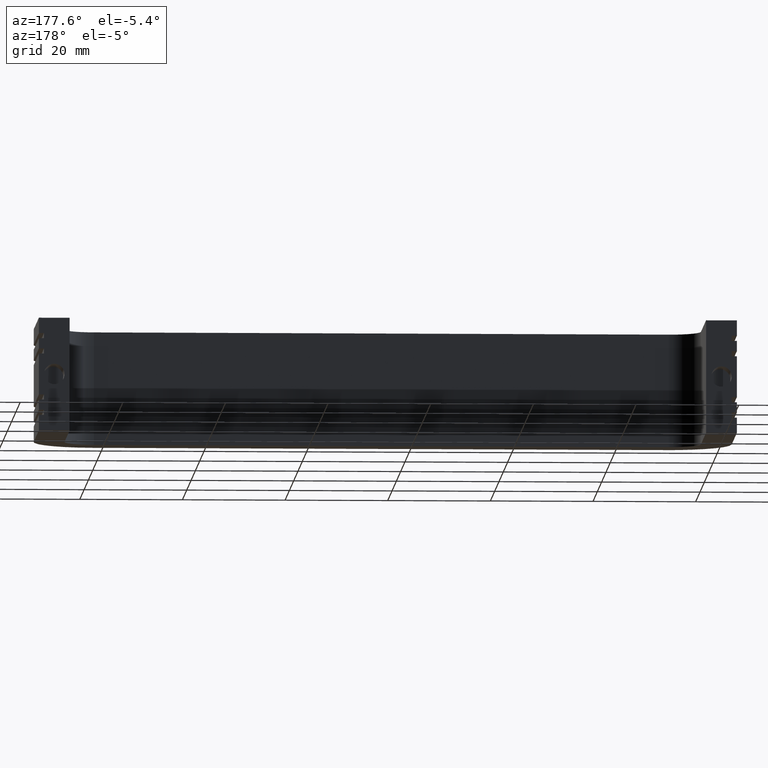
[diagram: clean part render]
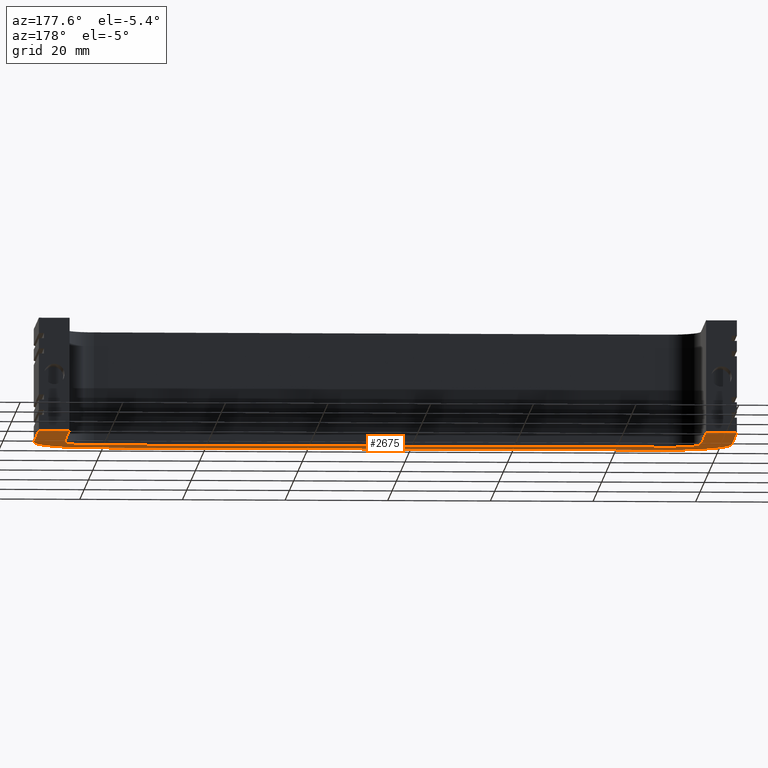
[diagram: same view with one face highlighted and labeled with its STEP entity id]
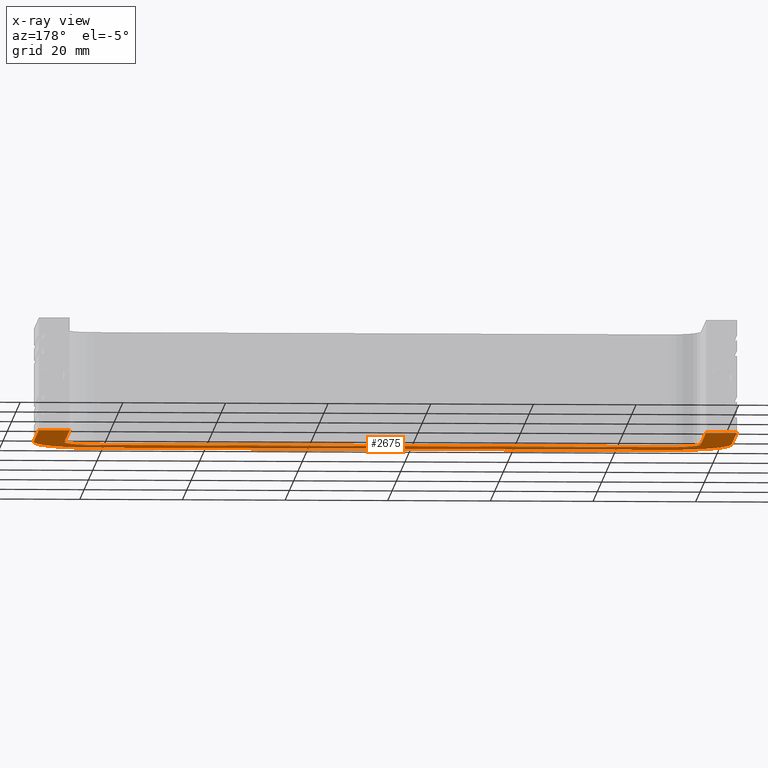
[diagram: x-ray of the same camera — body ghosted, the highlighted face saturated]
A machine part, auxiliary view. The second image highlights one B-rep face of the part: STEP entity #2675.
The next image is the same camera in x-ray: the body ghosted, the highlighted face saturated — about 0% of this face is hidden behind the body in this view.
In plain terms, the highlighted face is a freeform B-spline surface patch.
Its self-contained STEP definition (entity closure, byte-faithful):
#734=CARTESIAN_POINT('',(132.999900000000000,-24.0,-11.0));
#735=VERTEX_POINT('',#734);
#741=CARTESIAN_POINT('',(132.999900000000000,0.0,-11.0));
#742=VERTEX_POINT('',#741);
#743=CARTESIAN_POINT('',(132.999900000000000,-24.0,-11.0));
#744=CARTESIAN_POINT('',(132.999900000000000,0.0,-11.0));
#745=QUASI_UNIFORM_CURVE('',1,(#743,#744),.UNSPECIFIED.,.F.,.U.);
#746=EDGE_CURVE('',#735,#742,#745,.T.);
#761=CARTESIAN_POINT('',(126.999900000000000,-24.0,-11.0));
#762=VERTEX_POINT('',#761);
#763=CARTESIAN_POINT('',(126.999900000000000,0.0,-11.0));
#764=VERTEX_POINT('',#763);
#765=CARTESIAN_POINT('',(126.999900000000000,-24.0,-11.0));
#766=CARTESIAN_POINT('',(126.999900000000000,0.0,-11.0));
#767=QUASI_UNIFORM_CURVE('',1,(#765,#766),.UNSPECIFIED.,.F.,.U.);
#768=EDGE_CURVE('',#762,#764,#767,.T.);
#1245=CARTESIAN_POINT('',(120.999900000000000,-36.0,-11.0));
#1246=VERTEX_POINT('',#1245);
#1252=CARTESIAN_POINT('',(120.999900000000000,-36.000000000000007,-11.0));
#1253=CARTESIAN_POINT('',(132.999900000000000,-36.000000000000014,-11.0));
#1254=CARTESIAN_POINT('',(132.999900000000000,-24.0,-11.0));
#1262=(BOUNDED_CURVE()B_SPLINE_CURVE(2,(#1252,#1253,#1254),.UNSPECIFIED.,.F.,.U.)CURVE()GEOMETRIC_REPRESENTATION_ITEM()QUASI_UNIFORM_CURVE()RATIONAL_B_SPLINE_CURVE((1.0,0.707106781186548,1.0))REPRESENTATION_ITEM(''));
#1263=EDGE_CURVE('',#1246,#735,#1262,.T.);
#1283=CARTESIAN_POINT('',(120.999900000000000,-30.0,-11.0));
#1284=VERTEX_POINT('',#1283);
#1285=CARTESIAN_POINT('',(120.999900000000000,-30.0,-11.0));
#1286=CARTESIAN_POINT('',(126.999900000000000,-30.000000000000004,-11.0));
#1287=CARTESIAN_POINT('',(126.999900000000000,-24.0,-11.0));
#1295=(BOUNDED_CURVE()B_SPLINE_CURVE(2,(#1285,#1286,#1287),.UNSPECIFIED.,.F.,.U.)CURVE()GEOMETRIC_REPRESENTATION_ITEM()QUASI_UNIFORM_CURVE()RATIONAL_B_SPLINE_CURVE((1.0,0.707106781186548,1.0))REPRESENTATION_ITEM(''));
#1296=EDGE_CURVE('',#1284,#762,#1295,.T.);
#1558=CARTESIAN_POINT('',(9.0,-36.0,-11.0));
#1559=VERTEX_POINT('',#1558);
#1565=CARTESIAN_POINT('',(9.0,-36.0,-11.0));
#1566=CARTESIAN_POINT('',(120.999900000000000,-36.0,-11.0));
#1567=QUASI_UNIFORM_CURVE('',1,(#1565,#1566),.UNSPECIFIED.,.F.,.U.);
#1568=EDGE_CURVE('',#1559,#1246,#1567,.T.);
#1579=CARTESIAN_POINT('',(9.0,-30.0,-11.0));
#1580=VERTEX_POINT('',#1579);
#1581=CARTESIAN_POINT('',(9.0,-30.0,-11.0));
#1582=CARTESIAN_POINT('',(120.999900000000000,-30.0,-11.0));
#1583=QUASI_UNIFORM_CURVE('',1,(#1581,#1582),.UNSPECIFIED.,.F.,.U.);
#1584=EDGE_CURVE('',#1580,#1284,#1583,.T.);
#2055=CARTESIAN_POINT('',(-3.0,-24.0,-11.0));
#2056=VERTEX_POINT('',#2055);
#2062=CARTESIAN_POINT('',(-3.000000000000001,-24.0,-11.0));
#2063=CARTESIAN_POINT('',(-3.0,-36.000000000000014,-11.0));
#2064=CARTESIAN_POINT('',(9.0,-36.000000000000007,-11.0));
#2072=(BOUNDED_CURVE()B_SPLINE_CURVE(2,(#2062,#2063,#2064),.UNSPECIFIED.,.F.,.U.)CURVE()GEOMETRIC_REPRESENTATION_ITEM()QUASI_UNIFORM_CURVE()RATIONAL_B_SPLINE_CURVE((1.0,0.707106781186548,1.0))REPRESENTATION_ITEM(''));
#2073=EDGE_CURVE('',#2056,#1559,#2072,.T.);
#2093=CARTESIAN_POINT('',(3.0,-24.0,-11.0));
#2094=VERTEX_POINT('',#2093);
#2095=CARTESIAN_POINT('',(2.999999999999999,-24.0,-11.0));
#2096=CARTESIAN_POINT('',(2.999999999999999,-30.000000000000004,-11.0));
#2097=CARTESIAN_POINT('',(9.0,-30.0,-11.0));
#2105=(BOUNDED_CURVE()B_SPLINE_CURVE(2,(#2095,#2096,#2097),.UNSPECIFIED.,.F.,.U.)CURVE()GEOMETRIC_REPRESENTATION_ITEM()QUASI_UNIFORM_CURVE()RATIONAL_B_SPLINE_CURVE((1.0,0.707106781186548,1.0))REPRESENTATION_ITEM(''));
#2106=EDGE_CURVE('',#2094,#1580,#2105,.T.);
#2626=CARTESIAN_POINT('',(-3.0,0.0,-11.0));
#2627=VERTEX_POINT('',#2626);
#2633=CARTESIAN_POINT('',(-3.0,0.0,-11.0));
#2634=CARTESIAN_POINT('',(-3.0,-24.0,-11.0));
#2635=QUASI_UNIFORM_CURVE('',1,(#2633,#2634),.UNSPECIFIED.,.F.,.U.);
#2636=EDGE_CURVE('',#2627,#2056,#2635,.T.);
#2642=CARTESIAN_POINT('',(-9.793194255518628,-37.798199930225017,-11.0));
#2643=CARTESIAN_POINT('',(139.793088175849390,-37.798199930225017,-11.0));
#2644=CARTESIAN_POINT('',(-9.793194255518628,1.798200895820261,-11.0));
#2645=CARTESIAN_POINT('',(139.793088175849390,1.798200895820261,-11.0));
#2646=B_SPLINE_SURFACE_WITH_KNOTS('',1,1,((#2642,#2644),(#2643,#2645)),.UNSPECIFIED.,.F.,.F.,.U.,(2,2),(2,2),(0.0,149.586282431368010),(0.0,39.596400826045283),.UNSPECIFIED.);
#2647=ORIENTED_EDGE('',*,*,#2636,.F.);
#2648=CARTESIAN_POINT('',(3.0,0.0,-11.0));
#2649=VERTEX_POINT('',#2648);
#2650=CARTESIAN_POINT('',(3.0,0.0,-11.0));
#2651=CARTESIAN_POINT('',(-3.0,0.0,-11.0));
#2652=QUASI_UNIFORM_CURVE('',1,(#2650,#2651),.UNSPECIFIED.,.F.,.U.);
#2653=EDGE_CURVE('',#2649,#2627,#2652,.T.);
#2654=ORIENTED_EDGE('',*,*,#2653,.F.);
#2655=CARTESIAN_POINT('',(3.0,0.0,-11.0));
#2656=CARTESIAN_POINT('',(3.0,-24.0,-11.0));
#2657=QUASI_UNIFORM_CURVE('',1,(#2655,#2656),.UNSPECIFIED.,.F.,.U.);
#2658=EDGE_CURVE('',#2649,#2094,#2657,.T.);
#2659=ORIENTED_EDGE('',*,*,#2658,.T.);
#2660=ORIENTED_EDGE('',*,*,#2106,.T.);
#2661=ORIENTED_EDGE('',*,*,#1584,.T.);
#2662=ORIENTED_EDGE('',*,*,#1296,.T.);
#2663=ORIENTED_EDGE('',*,*,#768,.T.);
#2664=CARTESIAN_POINT('',(126.999900000000000,0.0,-11.0));
#2665=CARTESIAN_POINT('',(132.999900000000000,0.0,-11.0));
#2666=QUASI_UNIFORM_CURVE('',1,(#2664,#2665),.UNSPECIFIED.,.F.,.U.);
#2667=EDGE_CURVE('',#764,#742,#2666,.T.);
#2668=ORIENTED_EDGE('',*,*,#2667,.T.);
#2669=ORIENTED_EDGE('',*,*,#746,.F.);
#2670=ORIENTED_EDGE('',*,*,#1263,.F.);
#2671=ORIENTED_EDGE('',*,*,#1568,.F.);
#2672=ORIENTED_EDGE('',*,*,#2073,.F.);
#2673=EDGE_LOOP('',(#2647,#2654,#2659,#2660,#2661,#2662,#2663,#2668,#2669,#2670,#2671,#2672));
#2674=FACE_OUTER_BOUND('',#2673,.T.);
#2675=ADVANCED_FACE('',(#2674),#2646,.F.);